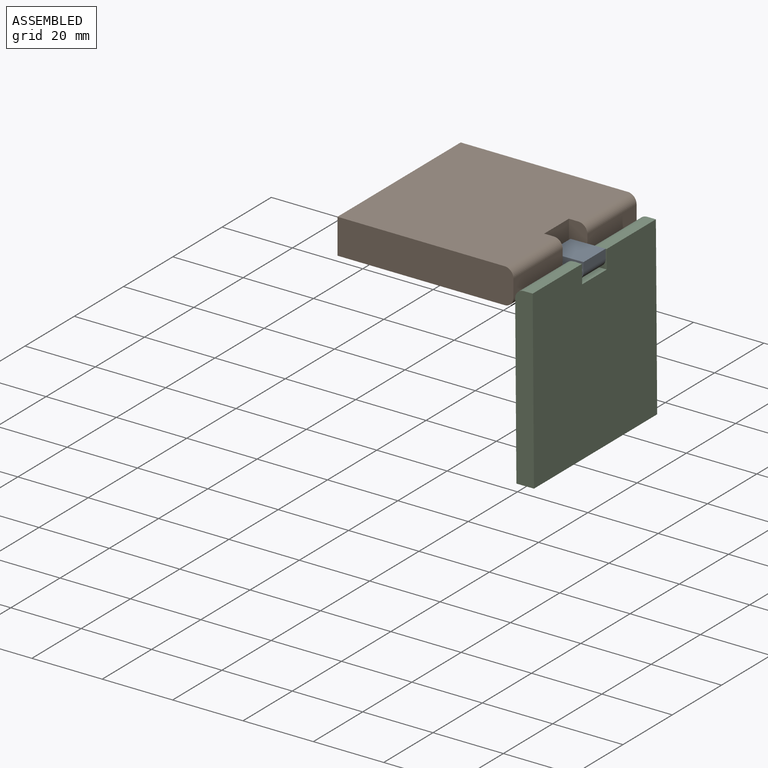
[diagram: assembled view]
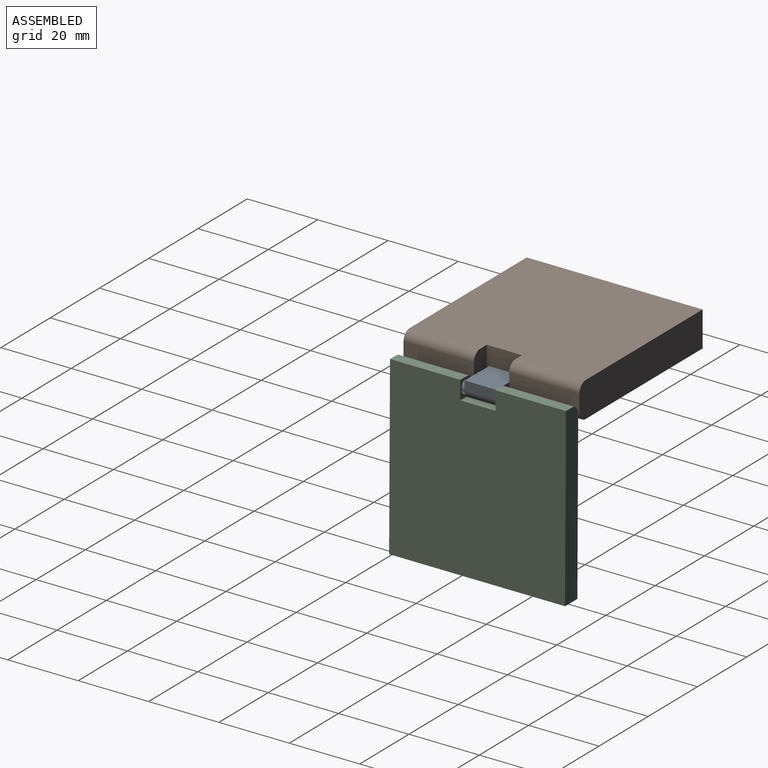
[diagram: assembled view, second angle]
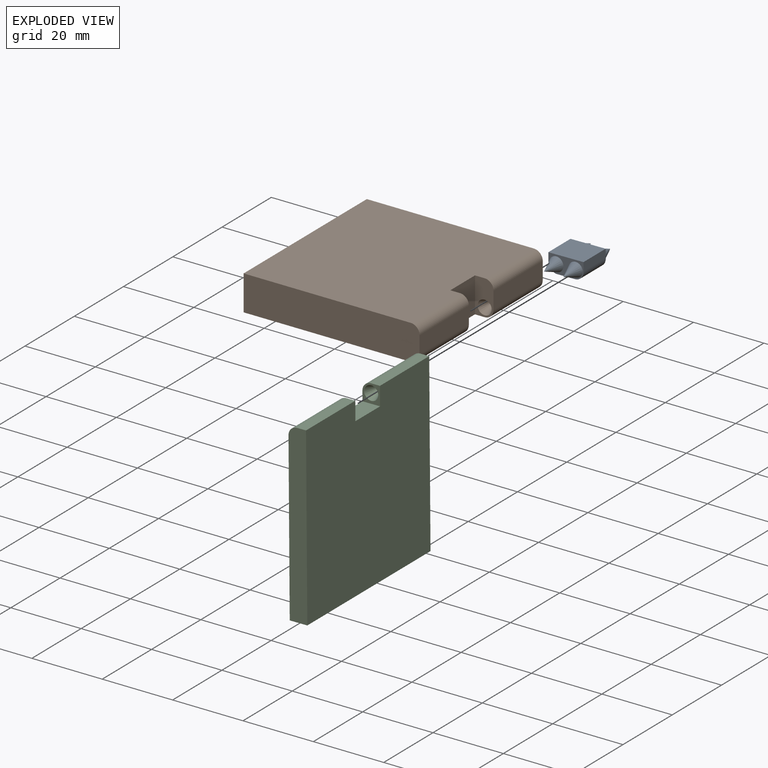
[diagram: exploded view]
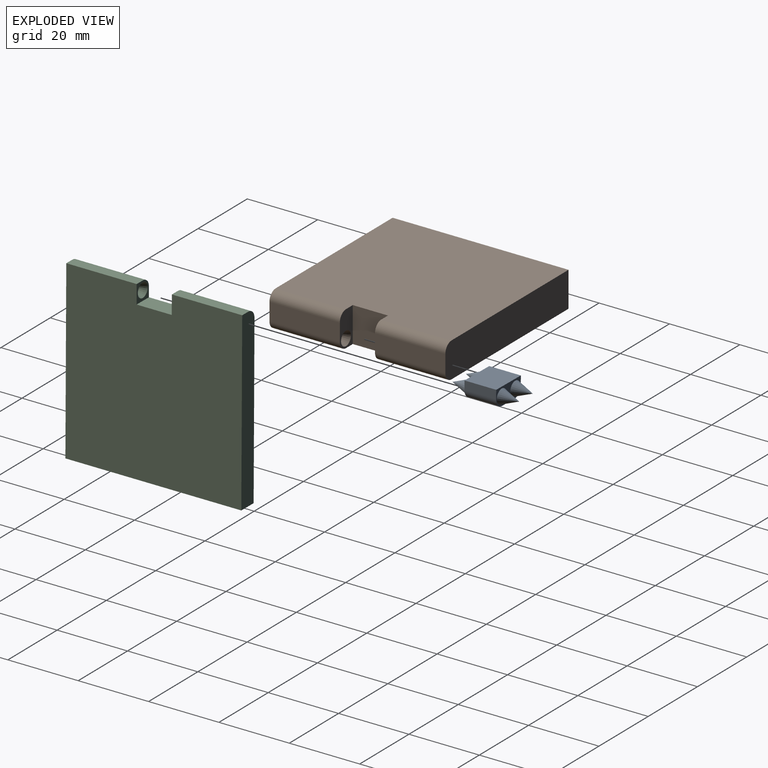
[diagram: exploded view, second angle]
ASSEMBLY  parts=3 mates=2
PART A: 12 faces, bbox 10x19x5 mm
  f0: plane 10x5mm, normal (0,-1,0), area 22.2mm2, adj f1,f3,f4,f5,f6,f8,f10,f11
  f1: plane 9x2.5mm, normal (1,0,0), area 22.5mm2, adj f0,f2,f4,f10
  f2: plane 10x5mm, normal (0,1,0), area 22.2mm2, adj f1,f3,f4,f5,f7,f9,f10,f11
  f3: plane 9x2.5mm, normal (-1,0,0), area 22.5mm2, adj f0,f2,f4,f11
  f4: plane 10x9mm, normal (0,0,1), area 90mm2, adj f0,f1,f2,f3
  f5: plane 9x5mm, normal (0,0,-1), area 45mm2, adj f0,f2,f10,f11
  f6: cone r=0mm half-angle=21.8deg, axis (0,1,0), area 33.8mm2, adj f0
  f7: cone r=0mm half-angle=21.8deg, axis (0,-1,0), area 33.8mm2, adj f2
  f8: cone r=0mm half-angle=21.8deg, axis (0,1,0), area 33.8mm2, adj f0
  f9: cone r=0mm half-angle=21.8deg, axis (0,-1,0), area 33.8mm2, adj f2
  f10: cylinder r=2.5mm len=9mm, axis (0,1,0), area 35.3mm2, adj f0,f1,f2,f5
  f11: cylinder r=2.5mm len=9mm, axis (0,-1,0), area 35.3mm2, adj f0,f2,f3,f5
PART B: 16 faces, bbox 50x50x10 mm
  f0: plane 20x5mm, normal (1,0,0), area 100mm2, adj f1,f7,f14,f15
  f1: plane 50x10mm, normal (0,1,0), area 497.3mm2, adj f0,f2,f5,f6,f14,f15
  f2: plane 50x10mm, normal (-1,0,0), area 500mm2, adj f1,f3,f5,f6
  f3: plane 50x10mm, normal (0,-1,0), area 497.3mm2, adj f2,f4,f5,f6,f12,f13
  f4: plane 20x5mm, normal (1,0,0), area 100mm2, adj f3,f9,f12,f13
  f5: plane 50x47.5mm, normal (0,0,-1), area 2347.5mm2, adj f1,f2,f3,f7,f8,f9,f12,f15
  f6: plane 50x47.5mm, normal (0,0,1), area 2347.5mm2, adj f1,f2,f3,f7,f8,f9,f13,f14
  f7: plane 10x5.25mm, normal (0,-1,0), area 37.3mm2, adj f0,f5,f6,f8,f11,f14,f15
  f8: plane 10x10mm, normal (1,0,0), area 100mm2, adj f5,f6,f7,f9
  f9: plane 10x5.25mm, normal (0,1,0), area 37.3mm2, adj f4,f5,f6,f8,f10,f12,f13
  f10: cone r=0mm half-angle=21.8deg, axis (0,1,0), area 33.8mm2, adj f9
  f11: cone r=0mm half-angle=21.8deg, axis (0,-1,0), area 33.8mm2, adj f7
  f12: cylinder r=2.5mm len=20mm, axis (0,-1,0), area 78.5mm2, adj f3,f4,f5,f9
  f13: cylinder r=2.5mm len=20mm, axis (0,1,0), area 78.5mm2, adj f3,f4,f6,f9
  f14: cylinder r=2.5mm len=20mm, axis (0,1,0), area 78.5mm2, adj f0,f1,f6,f7
  f15: cylinder r=2.5mm len=20mm, axis (0,-1,0), area 78.5mm2, adj f0,f1,f5,f7
PART C: 14 faces, bbox 50x50x5 mm
  f0: plane 20x2.5mm, normal (-1,0,0), area 50mm2, adj f3,f4,f7,f12
  f1: plane 50x47.5mm, normal (0,0,-1), area 2347.5mm2, adj f4,f5,f6,f7,f8,f9,f12,f13
  f2: plane 20x2.5mm, normal (-1,0,0), area 50mm2, adj f3,f5,f8,f13
  f3: plane 50x50mm, normal (0,0,1), area 2447.5mm2, adj f0,f2,f4,f5,f6,f7,f8,f9
  f4: plane 50x5mm, normal (0,1,0), area 248.7mm2, adj f0,f1,f3,f6,f12
  f5: plane 50x5mm, normal (0,-1,0), area 248.7mm2, adj f1,f2,f3,f6,f13
  f6: plane 50x5mm, normal (1,0,0), area 250mm2, adj f1,f3,f4,f5
  f7: plane 5.25x5mm, normal (0,-1,0), area 12.3mm2, adj f0,f1,f3,f9,f11,f12
  f8: plane 5.25x5mm, normal (0,1,0), area 12.3mm2, adj f1,f2,f3,f9,f10,f13
  f9: plane 10x5mm, normal (-1,0,0), area 50mm2, adj f1,f3,f7,f8
  f10: cone r=0mm half-angle=21.8deg, axis (0,1,0), area 33.8mm2, adj f8
  f11: cone r=0mm half-angle=21.8deg, axis (0,-1,0), area 33.8mm2, adj f7
  f12: cylinder r=2.5mm len=20mm, axis (0,-1,0), area 78.5mm2, adj f0,f1,f4,f7
  f13: cylinder r=2.5mm len=20mm, axis (0,-1,0), area 78.5mm2, adj f1,f2,f5,f8
PLACE A rot(axis=(0.01,0,-1),180deg) t=(-21.71,-13.4,-2.04)mm
PLACE B t=(-21.68,-13.9,-2.07)mm fixed
PLACE C rot(axis=(0,1,0),89.6deg) t=(-16.45,-13.9,-1.73)mm
MATE revolute B.f10 <-> A.f9  axis (0,-1,0) through (-24.43,-8.9,-4.57)mm
MATE revolute C.f12 <-> A.f6  axis (0,-1,0) through (-18.93,-8.9,-4.5)mm
